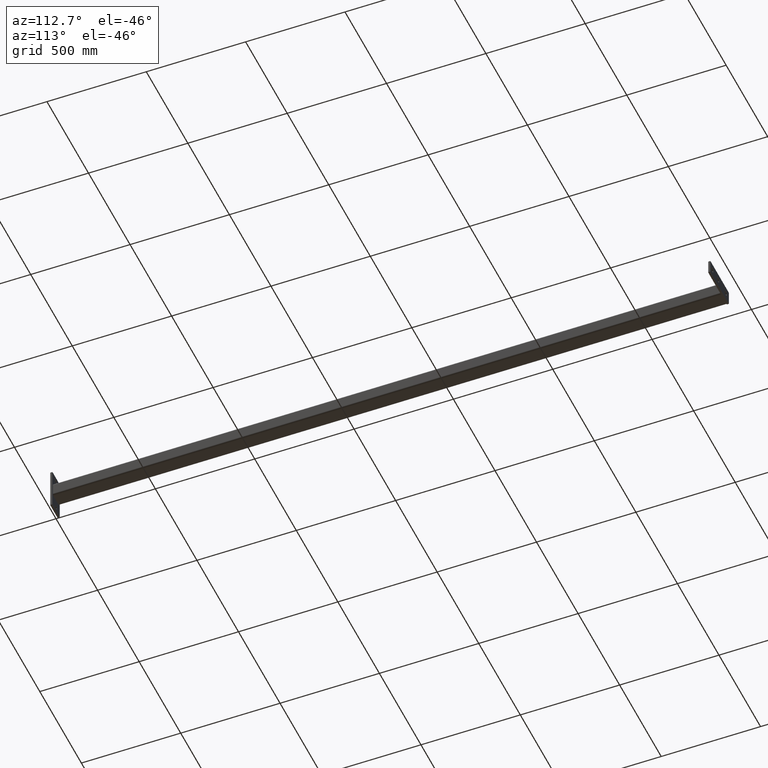
[diagram: clean part render]
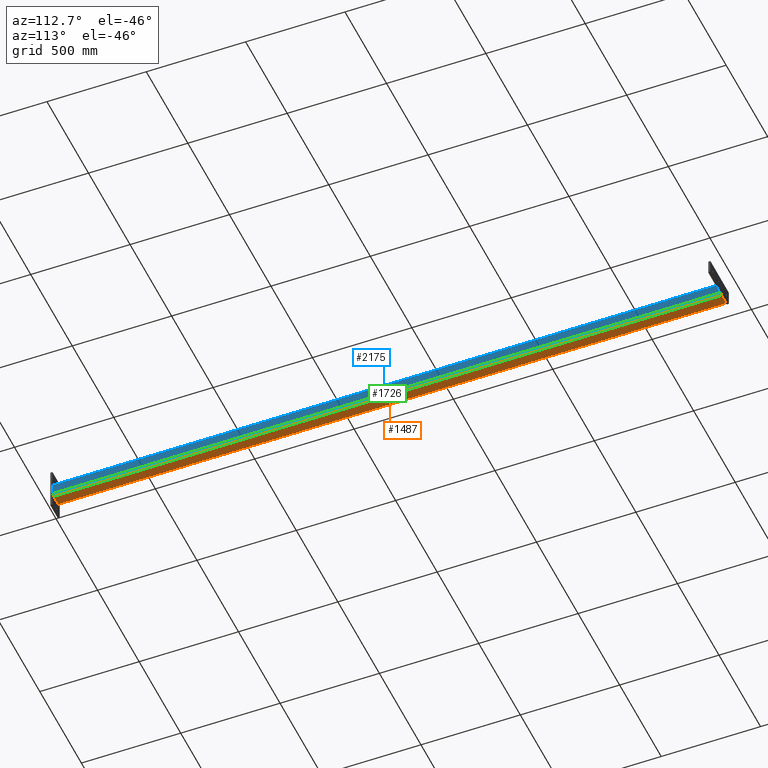
[diagram: same view with three faces highlighted in distinct colors, each labeled with its STEP entity id]
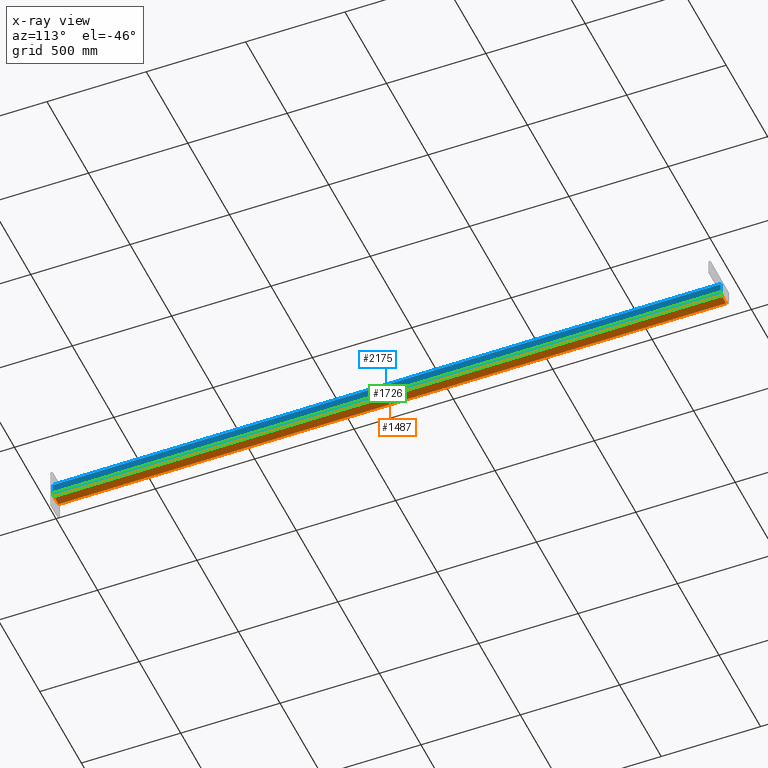
[diagram: x-ray of the same camera — body ghosted, the three highlighted faces saturated]
A machine part, auxiliary view with three faces highlighted in distinct colors.
The next image is the same camera in x-ray (body ghosted, the three faces saturated) — at least one of them is partly hidden behind the body in this view.
Their STEP definitions:

[orange] entity #1487 — the highlighted planar face has unit normal (-0, -0, 1).
#57 = FACE_OUTER_BOUND ( 'NONE', #1507, .T. ) ;
#58 = ORIENTED_EDGE ( 'NONE', *, *, #238, .T. ) ;
#73 = CARTESIAN_POINT ( 'NONE',  ( 1680.500000000000000, 27.50000000000064304, 37.49999999999987921 ) ) ;
#198 = LINE ( 'NONE', #1860, #630 ) ;
#212 = VECTOR ( 'NONE', #2219, 1000.000000000000000 ) ;
#238 = EDGE_CURVE ( 'NONE', #1188, #1569, #250, .T. ) ;
#250 = LINE ( 'NONE', #403, #212 ) ;
#290 = EDGE_CURVE ( 'NONE', #2356, #1569, #198, .T. ) ;
#305 = CARTESIAN_POINT ( 'NONE',  ( -1680.500000000000000, 27.49999999999961275, 37.49999999999987921 ) ) ;
#403 = CARTESIAN_POINT ( 'NONE',  ( 1680.500000000000000, 27.50000000000064304, 37.49999999999987921 ) ) ;
#585 = CARTESIAN_POINT ( 'NONE',  ( -1680.500000000000000, 27.49999999999961275, 37.49999999999987921 ) ) ;
#630 = VECTOR ( 'NONE', #2229, 1000.000000000000000 ) ;
#720 = VERTEX_POINT ( 'NONE', #2298 ) ;
#773 = DIRECTION ( 'NONE',  ( 1.000000000000000000, 3.061616997868382648E-16, -0.000000000000000000 ) ) ;
#1130 = VECTOR ( 'NONE', #773, 1000.000000000000000 ) ;
#1154 = DIRECTION ( 'NONE',  ( 3.862588276837757019E-32, -1.261617073437677506E-16, -1.000000000000000000 ) ) ;
#1179 = ORIENTED_EDGE ( 'NONE', *, *, #1436, .T. ) ;
#1188 = VERTEX_POINT ( 'NONE', #2097 ) ;
#1248 = LINE ( 'NONE', #305, #2321 ) ;
#1436 = EDGE_CURVE ( 'NONE', #720, #1188, #1849, .T. ) ;
#1487 = ADVANCED_FACE ( 'NONE', ( #57 ), #2093, .F. ) ;
#1507 = EDGE_LOOP ( 'NONE', ( #58, #2281, #1647, #1179 ) ) ;
#1512 = DIRECTION ( 'NONE',  ( 0.000000000000000000, 1.000000000000000000, -1.261617073437677506E-16 ) ) ;
#1569 = VERTEX_POINT ( 'NONE', #73 ) ;
#1647 = ORIENTED_EDGE ( 'NONE', *, *, #2111, .F. ) ;
#1819 = AXIS2_PLACEMENT_3D ( 'NONE', #2078, #1154, #1512 ) ;
#1849 = LINE ( 'NONE', #2042, #1130 ) ;
#1860 = CARTESIAN_POINT ( 'NONE',  ( -1680.500000000000000, 27.49999999999961275, 37.49999999999987921 ) ) ;
#1979 = DIRECTION ( 'NONE',  ( -0.000000000000000000, 1.000000000000000000, -1.261617073437677506E-16 ) ) ;
#2042 = CARTESIAN_POINT ( 'NONE',  ( -1680.500000000000000, -27.50000000000040146, 37.49999999999987921 ) ) ;
#2078 = CARTESIAN_POINT ( 'NONE',  ( -1680.500000000000000, 27.49999999999961275, 37.49999999999987921 ) ) ;
#2093 = PLANE ( 'NONE',  #1819 ) ;
#2097 = CARTESIAN_POINT ( 'NONE',  ( 1680.500000000000000, -27.49999999999937117, 37.49999999999987921 ) ) ;
#2111 = EDGE_CURVE ( 'NONE', #720, #2356, #1248, .T. ) ;
#2219 = DIRECTION ( 'NONE',  ( -0.000000000000000000, 1.000000000000000000, -1.261617073437677506E-16 ) ) ;
#2229 = DIRECTION ( 'NONE',  ( 1.000000000000000000, 3.061616997868382648E-16, -0.000000000000000000 ) ) ;
#2281 = ORIENTED_EDGE ( 'NONE', *, *, #290, .F. ) ;
#2298 = CARTESIAN_POINT ( 'NONE',  ( -1680.500000000000000, -27.50000000000040146, 37.49999999999987921 ) ) ;
#2321 = VECTOR ( 'NONE', #1979, 1000.000000000000000 ) ;
#2356 = VERTEX_POINT ( 'NONE', #585 ) ;

[blue] entity #2175 — the highlighted planar face has unit normal (-1, 0, 0).
#92 = DIRECTION ( 'NONE',  ( 1.000000000000000000, 3.061616997868382648E-16, -0.000000000000000000 ) ) ;
#169 = DIRECTION ( 'NONE',  ( 3.061616997868382648E-16, -1.000000000000000000, 0.000000000000000000 ) ) ;
#214 = LINE ( 'NONE', #932, #485 ) ;
#228 = CARTESIAN_POINT ( 'NONE',  ( -1680.500000000000000, 37.49999999999961631, -27.50000000000010303 ) ) ;
#291 = VERTEX_POINT ( 'NONE', #228 ) ;
#295 = DIRECTION ( 'NONE',  ( 1.000000000000000000, 3.061616997868382648E-16, -0.000000000000000000 ) ) ;
#371 = DIRECTION ( 'NONE',  ( -0.000000000000000000, -0.000000000000000000, -1.000000000000000000 ) ) ;
#381 = PLANE ( 'NONE',  #1780 ) ;
#485 = VECTOR ( 'NONE', #371, 1000.000000000000000 ) ;
#599 = VECTOR ( 'NONE', #92, 1000.000000000000000 ) ;
#612 = CARTESIAN_POINT ( 'NONE',  ( 1680.500000000000000, 37.50000000000064659, 27.49999999999986144 ) ) ;
#671 = CARTESIAN_POINT ( 'NONE',  ( -1680.500000000000000, 37.49999999999961631, 27.49999999999986144 ) ) ;
#705 = VECTOR ( 'NONE', #1298, 1000.000000000000000 ) ;
#723 = VERTEX_POINT ( 'NONE', #612 ) ;
#928 = ORIENTED_EDGE ( 'NONE', *, *, #2071, .T. ) ;
#932 = CARTESIAN_POINT ( 'NONE',  ( -1680.500000000000000, 37.49999999999961631, -27.50000000000010303 ) ) ;
#934 = VERTEX_POINT ( 'NONE', #1684 ) ;
#1001 = ORIENTED_EDGE ( 'NONE', *, *, #2252, .T. ) ;
#1002 = LINE ( 'NONE', #1727, #599 ) ;
#1086 = EDGE_LOOP ( 'NONE', ( #1001, #1957, #1400, #928 ) ) ;
#1189 = EDGE_CURVE ( 'NONE', #291, #934, #1002, .T. ) ;
#1271 = DIRECTION ( 'NONE',  ( 1.000000000000000000, 3.061616997868382648E-16, 0.000000000000000000 ) ) ;
#1298 = DIRECTION ( 'NONE',  ( -0.000000000000000000, -0.000000000000000000, -1.000000000000000000 ) ) ;
#1400 = ORIENTED_EDGE ( 'NONE', *, *, #1465, .F. ) ;
#1446 = VERTEX_POINT ( 'NONE', #1810 ) ;
#1458 = CARTESIAN_POINT ( 'NONE',  ( 1680.500000000000000, 37.50000000000064659, -27.50000000000010303 ) ) ;
#1465 = EDGE_CURVE ( 'NONE', #1446, #291, #214, .T. ) ;
#1493 = LINE ( 'NONE', #1458, #705 ) ;
#1514 = VECTOR ( 'NONE', #295, 1000.000000000000000 ) ;
#1609 = LINE ( 'NONE', #671, #1514 ) ;
#1636 = CARTESIAN_POINT ( 'NONE',  ( -1680.500000000000000, 37.49999999999961631, -27.50000000000010303 ) ) ;
#1684 = CARTESIAN_POINT ( 'NONE',  ( 1680.500000000000000, 37.50000000000064659, -27.50000000000010303 ) ) ;
#1727 = CARTESIAN_POINT ( 'NONE',  ( -1680.500000000000000, 37.49999999999961631, -27.50000000000010303 ) ) ;
#1780 = AXIS2_PLACEMENT_3D ( 'NONE', #1636, #169, #1271 ) ;
#1810 = CARTESIAN_POINT ( 'NONE',  ( -1680.500000000000000, 37.49999999999961631, 27.49999999999986144 ) ) ;
#1836 = FACE_OUTER_BOUND ( 'NONE', #1086, .T. ) ;
#1957 = ORIENTED_EDGE ( 'NONE', *, *, #1189, .F. ) ;
#2071 = EDGE_CURVE ( 'NONE', #1446, #723, #1609, .T. ) ;
#2175 = ADVANCED_FACE ( 'NONE', ( #1836 ), #381, .F. ) ;
#2252 = EDGE_CURVE ( 'NONE', #723, #934, #1493, .T. ) ;

[green] entity #1726 — the highlighted cylindrical surface (edge-blend (fillet) strip) has radius 10 mm, axis along (0, 1, 0).
#73 = CARTESIAN_POINT ( 'NONE',  ( 1680.500000000000000, 27.50000000000064304, 37.49999999999987921 ) ) ;
#198 = LINE ( 'NONE', #1860, #630 ) ;
#290 = EDGE_CURVE ( 'NONE', #2356, #1569, #198, .T. ) ;
#295 = DIRECTION ( 'NONE',  ( 1.000000000000000000, 3.061616997868382648E-16, -0.000000000000000000 ) ) ;
#375 = AXIS2_PLACEMENT_3D ( 'NONE', #1563, #1043, #660 ) ;
#475 = FACE_OUTER_BOUND ( 'NONE', #1725, .T. ) ;
#520 = CYLINDRICAL_SURFACE ( 'NONE', #375, 10.00000000000001243 ) ;
#585 = CARTESIAN_POINT ( 'NONE',  ( -1680.500000000000000, 27.49999999999961275, 37.49999999999987921 ) ) ;
#612 = CARTESIAN_POINT ( 'NONE',  ( 1680.500000000000000, 37.50000000000064659, 27.49999999999986144 ) ) ;
#630 = VECTOR ( 'NONE', #2229, 1000.000000000000000 ) ;
#660 = DIRECTION ( 'NONE',  ( 0.000000000000000000, 1.000000000000000000, 0.000000000000000000 ) ) ;
#671 = CARTESIAN_POINT ( 'NONE',  ( -1680.500000000000000, 37.49999999999961631, 27.49999999999986144 ) ) ;
#697 = DIRECTION ( 'NONE',  ( -1.000000000000000000, -3.061616997868382648E-16, 0.000000000000000000 ) ) ;
#723 = VERTEX_POINT ( 'NONE', #612 ) ;
#725 = CARTESIAN_POINT ( 'NONE',  ( -1680.500000000000000, 27.49999999999961275, 27.49999999999986144 ) ) ;
#727 = ORIENTED_EDGE ( 'NONE', *, *, #1371, .F. ) ;
#893 = ORIENTED_EDGE ( 'NONE', *, *, #290, .T. ) ;
#1043 = DIRECTION ( 'NONE',  ( 1.000000000000000000, 3.061616997868382648E-16, -0.000000000000000000 ) ) ;
#1253 = EDGE_CURVE ( 'NONE', #1569, #723, #2090, .T. ) ;
#1287 = AXIS2_PLACEMENT_3D ( 'NONE', #725, #2222, #1311 ) ;
#1311 = DIRECTION ( 'NONE',  ( 0.000000000000000000, 1.000000000000000000, 0.000000000000000000 ) ) ;
#1371 = EDGE_CURVE ( 'NONE', #2356, #1446, #1511, .T. ) ;
#1433 = AXIS2_PLACEMENT_3D ( 'NONE', #1798, #697, #2126 ) ;
#1446 = VERTEX_POINT ( 'NONE', #1810 ) ;
#1511 = CIRCLE ( 'NONE', #1287, 10.00000000000001243 ) ;
#1514 = VECTOR ( 'NONE', #295, 1000.000000000000000 ) ;
#1563 = CARTESIAN_POINT ( 'NONE',  ( -1680.500000000000000, 27.49999999999961275, 27.49999999999986144 ) ) ;
#1569 = VERTEX_POINT ( 'NONE', #73 ) ;
#1609 = LINE ( 'NONE', #671, #1514 ) ;
#1725 = EDGE_LOOP ( 'NONE', ( #2069, #1800, #727, #893 ) ) ;
#1726 = ADVANCED_FACE ( 'NONE', ( #475 ), #520, .T. ) ;
#1798 = CARTESIAN_POINT ( 'NONE',  ( 1680.500000000000000, 27.50000000000064304, 27.49999999999986144 ) ) ;
#1800 = ORIENTED_EDGE ( 'NONE', *, *, #2071, .F. ) ;
#1810 = CARTESIAN_POINT ( 'NONE',  ( -1680.500000000000000, 37.49999999999961631, 27.49999999999986144 ) ) ;
#1860 = CARTESIAN_POINT ( 'NONE',  ( -1680.500000000000000, 27.49999999999961275, 37.49999999999987921 ) ) ;
#2069 = ORIENTED_EDGE ( 'NONE', *, *, #1253, .T. ) ;
#2071 = EDGE_CURVE ( 'NONE', #1446, #723, #1609, .T. ) ;
#2090 = CIRCLE ( 'NONE', #1433, 10.00000000000000888 ) ;
#2126 = DIRECTION ( 'NONE',  ( 0.000000000000000000, 1.000000000000000000, 0.000000000000000000 ) ) ;
#2222 = DIRECTION ( 'NONE',  ( -1.000000000000000000, -3.061616997868382648E-16, 0.000000000000000000 ) ) ;
#2229 = DIRECTION ( 'NONE',  ( 1.000000000000000000, 3.061616997868382648E-16, -0.000000000000000000 ) ) ;
#2356 = VERTEX_POINT ( 'NONE', #585 ) ;